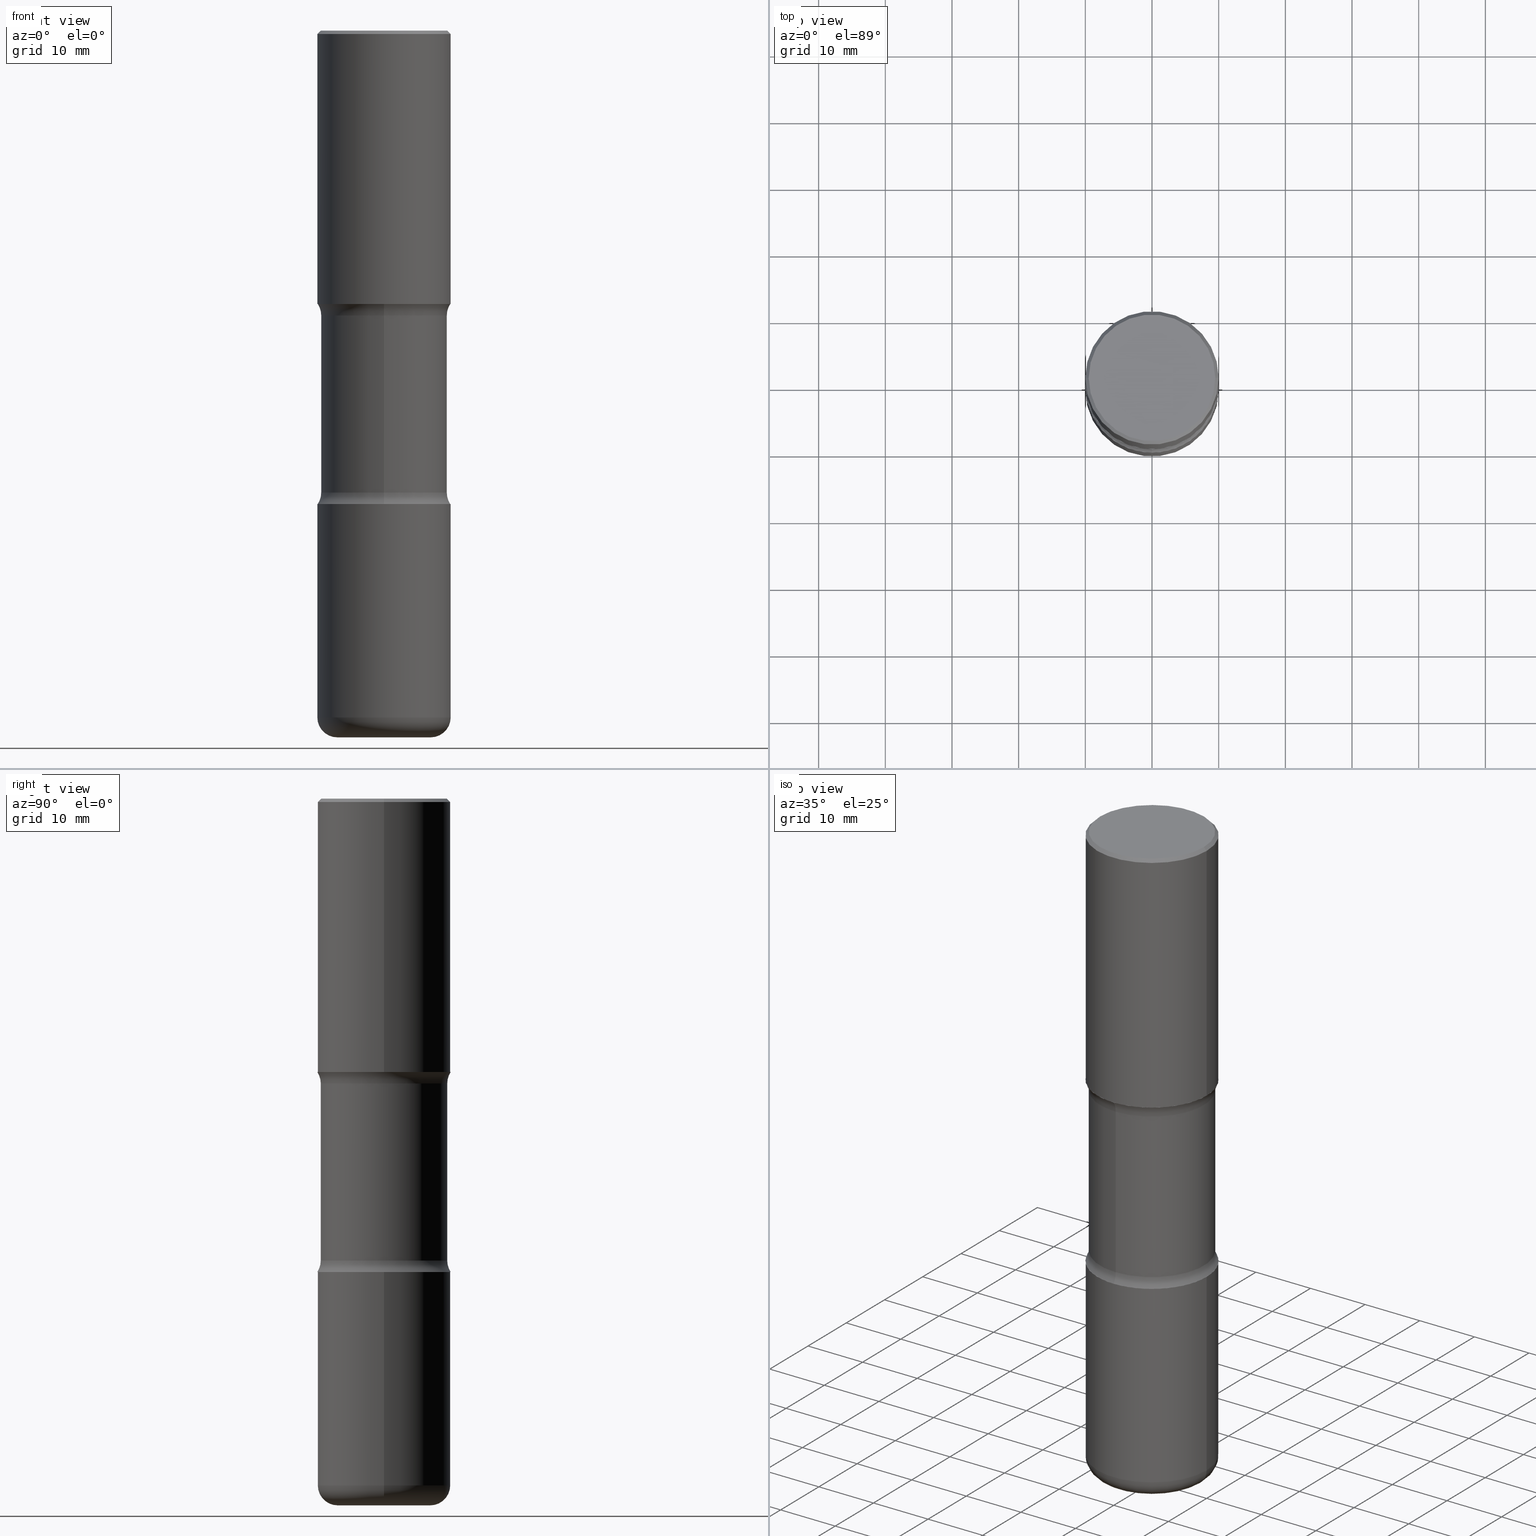
[diagram: canonical four-view strip — front | top / right | iso, engineering-drawing reading convention]
A machine part, canonical four-view strip (front | top / right | iso — engineering-drawing reading convention). The complete STEP part file that produces these views, byte-faithful:
ISO-10303-21;
HEADER;
FILE_DESCRIPTION (( 'STEP AP203' ),
    '1' );
FILE_NAME ('45010.STEP',
    '2024-03-02T04:37:54',
    ( '' ),
    ( '' ),
    'SwSTEP 2.0',
    'SolidWorks 2023',
    '' );
FILE_SCHEMA (( 'CONFIG_CONTROL_DESIGN' ));
ENDSEC;

DATA;
#1 = DIRECTION ( 'NONE',  ( -2.445468806185136877E-29, 3.491481338843145188E-15, 1.000000000000000000 ) ) ;
#2 = CARTESIAN_POINT ( 'NONE',  ( 4.018463748733707681E-29, -6.010073793817493129E-15, -1.682231930840099476 ) ) ;
#3 = ORIENTED_EDGE ( 'NONE', *, *, #560, .T. ) ;
#4 = CARTESIAN_POINT ( 'NONE',  ( 3.947231200063429727E-29, -5.635600029026721857E-15, -1.614100000000000090 ) ) ;
#5 = VECTOR ( 'NONE', #105, 39.37007874015748143 ) ;
#6 = CARTESIAN_POINT ( 'NONE',  ( 2.609533152651359776E-15, 0.3737000000000003097, -1.311169345060835261E-15 ) ) ;
#7 = CYLINDRICAL_SURFACE ( 'NONE', #381, 0.3937000000000004940 ) ;
#8 = DIRECTION ( 'NONE',  ( 6.982962677686265922E-15, 1.000000000000000000, -2.925673888797068135E-15 ) ) ;
#9 = DIRECTION ( 'NONE',  ( 1.000000000000000000, -6.982962677686266711E-15, 0.000000000000000000 ) ) ;
#10 = CIRCLE ( 'NONE', #388, 0.3937000000000006605 ) ;
#11 = CIRCLE ( 'NONE', #505, 0.3735000000000000542 ) ;
#12 = CARTESIAN_POINT ( 'NONE',  ( 1.598261485727551537E-28, -6.297392994987593400E-15, -4.173200000000000465 ) ) ;
#13 = ADVANCED_FACE ( 'NONE', ( #160 ), #301, .F. ) ;
#14 = CARTESIAN_POINT ( 'NONE',  ( 6.835574407048695164E-29, -9.759388638334361670E-15, -2.795200000000000351 ) ) ;
#15 = FACE_OUTER_BOUND ( 'NONE', #48, .T. ) ;
#16 = VECTOR ( 'NONE', #54, 39.37007874015748143 ) ;
#17 = DIRECTION ( 'NONE',  ( -2.445468806185136597E-29, 3.491481338843145583E-15, 1.000000000000000000 ) ) ;
#18 = CC_DESIGN_PERSON_AND_ORGANIZATION_ASSIGNMENT ( #372, #326, ( #352 ) ) ;
#19 = EDGE_LOOP ( 'NONE', ( #114, #42 ) ) ;
#20 = DIRECTION ( 'NONE',  ( -2.445468806185136597E-29, 3.491481338843145583E-15, 1.000000000000000000 ) ) ;
#21 = ORIENTED_EDGE ( 'NONE', *, *, #491, .T. ) ;
#22 = MECHANICAL_CONTEXT ( 'NONE', #24, 'mechanical' ) ;
#23 = CARTESIAN_POINT ( 'NONE',  ( -2.631687031945092870E-15, -0.3735000000000095466, -2.727068069159900521 ) ) ;
#24 = APPLICATION_CONTEXT ( 'configuration controlled 3d designs of mechanical parts and assemblies' ) ;
#25 = ORIENTED_EDGE ( 'NONE', *, *, #45, .F. ) ;
#26 = CIRCLE ( 'NONE', #282, 0.3735000000000000542 ) ;
#27 = EDGE_CURVE ( 'NONE', #87, #61, #248, .T. ) ;
#28 = LINE ( 'NONE', #483, #302 ) ;
#29 = LOCAL_TIME ( 23, 37, 54.00000000000000000, #369 ) ;
#30 = EDGE_LOOP ( 'NONE', ( #304, #384, #545, #512 ) ) ;
#31 = SECURITY_CLASSIFICATION_LEVEL ( 'unclassified' ) ;
#32 = ORIENTED_EDGE ( 'NONE', *, *, #191, .F. ) ;
#33 = DATE_AND_TIME ( #77, #219 ) ;
#34 = DIRECTION ( 'NONE',  ( 2.445468806185136597E-29, -3.491481338843145583E-15, -1.000000000000000000 ) ) ;
#35 = EDGE_CURVE ( 'NONE', #194, #67, #540, .T. ) ;
#36 = DIRECTION ( 'NONE',  ( 2.497382066111305685E-29, -3.417138595909611452E-15, -1.000000000000000000 ) ) ;
#37 = AXIS2_PLACEMENT_3D ( 'NONE', #173, #298, #265 ) ;
#38 = AXIS2_PLACEMENT_3D ( 'NONE', #366, #406, #221 ) ;
#39 = EDGE_CURVE ( 'NONE', #87, #410, #226, .T. ) ;
#40 = CARTESIAN_POINT ( 'NONE',  ( 0.2756000000000008998, -1.608281049111318039E-14, -4.055099999999999483 ) ) ;
#41 = ORIENTED_EDGE ( 'NONE', *, *, #308, .T. ) ;
#42 = ORIENTED_EDGE ( 'NONE', *, *, #88, .F. ) ;
#43 = CARTESIAN_POINT ( 'NONE',  ( 3.885916448764630888E-29, -5.723406242705518712E-15, -1.614100000000000090 ) ) ;
#44 = EDGE_LOOP ( 'NONE', ( #239, #426, #193, #244 ) ) ;
#45 = EDGE_CURVE ( 'NONE', #410, #260, #537, .T. ) ;
#46 = CARTESIAN_POINT ( 'NONE',  ( 6.835574407048695164E-29, -9.759388638334361670E-15, -2.795200000000000351 ) ) ;
#47 = AXIS2_PLACEMENT_3D ( 'NONE', #122, #294, #463 ) ;
#48 = EDGE_LOOP ( 'NONE', ( #162, #41 ) ) ;
#49 = AXIS2_PLACEMENT_3D ( 'NONE', #134, #307, #8 ) ;
#50 = DIRECTION ( 'NONE',  ( -1.000000000000000000, 6.982962677686265922E-15, -4.876176775795935793E-29 ) ) ;
#51 = DIRECTION ( 'NONE',  ( 1.000000000000000000, -6.982962677686265133E-15, 0.000000000000000000 ) ) ;
#52 = FACE_OUTER_BOUND ( 'NONE', #341, .T. ) ;
#53 = ADVANCED_FACE ( 'NONE', ( #232 ), #62, .T. ) ;
#54 = DIRECTION ( 'NONE',  ( -2.445468806185136877E-29, 3.491481338843145188E-15, 1.000000000000000000 ) ) ;
#55 = AXIS2_PLACEMENT_3D ( 'NONE', #465, #79, #428 ) ;
#56 =( GEOMETRIC_REPRESENTATION_CONTEXT ( 3 ) GLOBAL_UNCERTAINTY_ASSIGNED_CONTEXT ( ( #177 ) ) GLOBAL_UNIT_ASSIGNED_CONTEXT ( ( #455, #242, #421 ) ) REPRESENTATION_CONTEXT ( 'NONE', 'WORKASPACE' ) );
#57 = DIRECTION ( 'NONE',  ( -2.445468806185136597E-29, 3.491481338843145583E-15, 1.000000000000000000 ) ) ;
#58 = DIRECTION ( 'NONE',  ( 2.497382066111305685E-29, -3.417138595909611452E-15, -1.000000000000000000 ) ) ;
#59 = CARTESIAN_POINT ( 'NONE',  ( -0.2756000000000008998, -1.198664668498034458E-14, -4.173199999999999577 ) ) ;
#60 = EDGE_CURVE ( 'NONE', #550, #458, #217, .T. ) ;
#61 = VERTEX_POINT ( 'NONE', #409 ) ;
#62 = TOROIDAL_SURFACE ( 'NONE', #379, 0.2756000000000008998, 0.1180999999999999966 ) ;
#63 = DIRECTION ( 'NONE',  ( 1.000000000000000000, -6.982962677686268288E-15, 0.000000000000000000 ) ) ;
#64 = ORIENTED_EDGE ( 'NONE', *, *, #60, .T. ) ;
#65 = ORIENTED_EDGE ( 'NONE', *, *, #39, .T. ) ;
#66 = CARTESIAN_POINT ( 'NONE',  ( -0.3937000000000004940, 2.797406750687517942E-15, -1.936584745033358697E-29 ) ) ;
#67 = VERTEX_POINT ( 'NONE', #23 ) ;
#68 =( LENGTH_UNIT ( ) NAMED_UNIT ( * ) SI_UNIT ( $, .METRE. ) );
#69 = ADVANCED_FACE ( 'NONE', ( #116 ), #376, .F. ) ;
#70 = CARTESIAN_POINT ( 'NONE',  ( 6.835574407048695164E-29, -9.759388638334361670E-15, -2.795200000000000351 ) ) ;
#71 = EDGE_LOOP ( 'NONE', ( #204, #190 ) ) ;
#72 = APPLICATION_PROTOCOL_DEFINITION ( 'international standard', 'config_control_design', 1994, #549 ) ;
#73 = CIRCLE ( 'NONE', #396, 0.3937000000000008271 ) ;
#74 = APPROVAL_PERSON_ORGANIZATION ( #551, #420, #195 ) ;
#75 = ORIENTED_EDGE ( 'NONE', *, *, #314, .T. ) ;
#76 = ORIENTED_EDGE ( 'NONE', *, *, #113, .F. ) ;
#77 = CALENDAR_DATE ( 2024, 1, 3 ) ;
#78 = ORIENTED_EDGE ( 'NONE', *, *, #186, .F. ) ;
#79 = DIRECTION ( 'NONE',  ( -2.445468806185136597E-29, 3.491481338843145583E-15, 1.000000000000000000 ) ) ;
#80 = ORIENTED_EDGE ( 'NONE', *, *, #35, .T. ) ;
#81 = PERSON_AND_ORGANIZATION_ROLE ( 'design_owner' ) ;
#82 = EDGE_LOOP ( 'NONE', ( #135, #509, #75, #345 ) ) ;
#83 = DIRECTION ( 'NONE',  ( -2.445468806185136597E-29, 3.491481338843145583E-15, 1.000000000000000000 ) ) ;
#84 = AXIS2_PLACEMENT_3D ( 'NONE', #14, #98, #137 ) ;
#85 = AXIS2_PLACEMENT_3D ( 'NONE', #102, #277, #443 ) ;
#86 = DIRECTION ( 'NONE',  ( -2.445468806185136597E-29, 3.491481338843145583E-15, 1.000000000000000000 ) ) ;
#87 = VERTEX_POINT ( 'NONE', #176 ) ;
#88 = EDGE_CURVE ( 'NONE', #365, #286, #128, .T. ) ;
#89 = CARTESIAN_POINT ( 'NONE',  ( -0.3937000000000007160, -5.530807721427186863E-17, -1.614100000000000090 ) ) ;
#90 = LINE ( 'NONE', #181, #227 ) ;
#91 = CALENDAR_DATE ( 2024, 1, 3 ) ;
#92 = AXIS2_PLACEMENT_3D ( 'NONE', #452, #456, #534 ) ;
#93 = CARTESIAN_POINT ( 'NONE',  ( 0.000000000000000000, 0.000000000000000000, 0.000000000000000000 ) ) ;
#94 = DIRECTION ( 'NONE',  ( -1.000000000000000000, 6.982962677686265922E-15, -4.883557194083112340E-29 ) ) ;
#95 = EDGE_CURVE ( 'NONE', #61, #260, #197, .T. ) ;
#96 = CARTESIAN_POINT ( 'NONE',  ( 0.3937000000000004940, -2.749192406205086766E-15, 1.919750796630862414E-29 ) ) ;
#97 = ADVANCED_BREP_SHAPE_REPRESENTATION ( '45010', ( #403, #202, #222, #258 ), #56 ) ;
#98 = DIRECTION ( 'NONE',  ( 2.438088387897960049E-29, -3.491481338843145188E-15, -1.000000000000000000 ) ) ;
#99 = AXIS2_PLACEMENT_3D ( 'NONE', #40, #383, #419 ) ;
#100 = AXIS2_PLACEMENT_3D ( 'NONE', #103, #444, #178 ) ;
#101 = CARTESIAN_POINT ( 'NONE',  ( -2.562396002167564465E-15, -0.3735000000000145981, -4.173199999999998688 ) ) ;
#102 = CARTESIAN_POINT ( 'NONE',  ( 3.947231200063429727E-29, -5.635600029026721857E-15, -1.614100000000000090 ) ) ;
#103 = CARTESIAN_POINT ( 'NONE',  ( 0.000000000000000000, 0.000000000000000000, 0.000000000000000000 ) ) ;
#104 = CARTESIAN_POINT ( 'NONE',  ( 1.027696689415007474E-28, -1.446820562349780459E-14, -4.173200000000000465 ) ) ;
#105 = DIRECTION ( 'NONE',  ( -2.445468806185136877E-29, 3.491481338843145188E-15, 1.000000000000000000 ) ) ;
#106 = ORIENTED_EDGE ( 'NONE', *, *, #338, .T. ) ;
#107 = PERSON_AND_ORGANIZATION_ROLE ( 'design_supplier' ) ;
#108 = AXIS2_PLACEMENT_3D ( 'NONE', #386, #34, #218 ) ;
#109 = CARTESIAN_POINT ( 'NONE',  ( 2.608136560115862805E-15, 0.3734999999999943365, -1.682231930840100809 ) ) ;
#110 = EDGE_CURVE ( 'NONE', #207, #194, #402, .T. ) ;
#111 = ORIENTED_EDGE ( 'NONE', *, *, #510, .T. ) ;
#112 = APPROVAL_ROLE ( '' ) ;
#113 = EDGE_CURVE ( 'NONE', #458, #550, #155, .T. ) ;
#114 = ORIENTED_EDGE ( 'NONE', *, *, #268, .F. ) ;
#115 = APPROVAL_DATE_TIME ( #33, #420 ) ;
#116 = FACE_OUTER_BOUND ( 'NONE', #377, .T. ) ;
#117 = VERTEX_POINT ( 'NONE', #163 ) ;
#118 = LENGTH_MEASURE_WITH_UNIT ( LENGTH_MEASURE( 0.02539999999999999897 ), #68 );
#119 = ADVANCED_FACE ( 'NONE', ( #126 ), #209, .T. ) ;
#120 = CLOSED_SHELL ( 'NONE', ( #385, #13, #151, #471, #238, #440, #435, #482 ) ) ;
#121 = CC_DESIGN_SECURITY_CLASSIFICATION ( #293, ( #370 ) ) ;
#122 = CARTESIAN_POINT ( 'NONE',  ( 4.890937612370306439E-31, -6.982962677686338448E-17, -0.02000000000000013572 ) ) ;
#123 = ORIENTED_EDGE ( 'NONE', *, *, #39, .F. ) ;
#124 = DATE_AND_TIME ( #335, #360 ) ;
#125 = EDGE_CURVE ( 'NONE', #260, #61, #504, .T. ) ;
#126 = FACE_OUTER_BOUND ( 'NONE', #30, .T. ) ;
#127 = DIRECTION ( 'NONE',  ( -2.445468806185136597E-29, 3.491481338843145583E-15, 1.000000000000000000 ) ) ;
#128 = CIRCLE ( 'NONE', #446, 0.3937000000000008271 ) ;
#129 = DIRECTION ( 'NONE',  ( 6.982962677686265922E-15, 1.000000000000000000, -3.657092360996333689E-15 ) ) ;
#130 = CIRCLE ( 'NONE', #38, 0.1181000000000000383 ) ;
#131 = PRODUCT ( '45010', '45010', '', ( #22 ) ) ;
#132 = EDGE_CURVE ( 'NONE', #506, #117, #267, .T. ) ;
#133 = DIRECTION ( 'NONE',  ( -2.445468806185136597E-29, 3.491481338843145583E-15, 1.000000000000000000 ) ) ;
#134 = CARTESIAN_POINT ( 'NONE',  ( 1.027696689415007474E-28, -1.446820562349780459E-14, -4.173200000000000465 ) ) ;
#135 = ORIENTED_EDGE ( 'NONE', *, *, #143, .F. ) ;
#136 = EDGE_CURVE ( 'NONE', #67, #328, #26, .T. ) ;
#137 = DIRECTION ( 'NONE',  ( -1.000000000000000000, 6.982962677686265922E-15, -4.876176775795935793E-29 ) ) ;
#138 = CIRCLE ( 'NONE', #85, 0.3937000000000006605 ) ;
#139 = APPROVAL ( #546, 'UNSPECIFIED' ) ;
#140 = DIRECTION ( 'NONE',  ( -2.445468806185136597E-29, 3.491481338843145583E-15, 1.000000000000000000 ) ) ;
#141 = CARTESIAN_POINT ( 'NONE',  ( 2.608136560115886865E-15, 0.3734999999999905618, -2.727068069159902741 ) ) ;
#142 = CARTESIAN_POINT ( 'NONE',  ( 2.749192406205127393E-15, 0.3936999999999950539, -1.614100000000001423 ) ) ;
#143 = EDGE_CURVE ( 'NONE', #174, #331, #299, .T. ) ;
#144 = TOROIDAL_SURFACE ( 'NONE', #92, 0.4985000000000001097, 0.1249999999999999445 ) ;
#145 = CC_DESIGN_APPROVAL ( #514, ( #293 ) ) ;
#146 = CYLINDRICAL_SURFACE ( 'NONE', #447, 0.3735000000000001097 ) ;
#147 = CARTESIAN_POINT ( 'NONE',  ( -0.3737000000000003097, 2.644447966039791425E-15, -1.280553747031960567E-17 ) ) ;
#148 = FACE_OUTER_BOUND ( 'NONE', #494, .T. ) ;
#149 = DIRECTION ( 'NONE',  ( -2.438088387897960049E-29, 3.491481338843145188E-15, 1.000000000000000000 ) ) ;
#150 = ORIENTED_EDGE ( 'NONE', *, *, #125, .T. ) ;
#151 = ADVANCED_FACE ( 'NONE', ( #424 ), #257, .F. ) ;
#152 = CARTESIAN_POINT ( 'NONE',  ( 4.056067910974230799E-29, -5.956222493193065901E-15, -1.682231930840099476 ) ) ;
#153 = EDGE_LOOP ( 'NONE', ( #289, #516, #329, #291 ) ) ;
#154 = APPROVAL_STATUS ( 'not_yet_approved' ) ;
#155 = CIRCLE ( 'NONE', #274, 0.3735000000000002762 ) ;
#156 = AXIS2_PLACEMENT_3D ( 'NONE', #223, #478, #273 ) ;
#157 = LOCAL_TIME ( 23, 37, 54.00000000000000000, #501 ) ;
#158 = CARTESIAN_POINT ( 'NONE',  ( -0.3937000000000003830, 2.679362779428222679E-15, -0.02000000000000013572 ) ) ;
#159 = ORIENTED_EDGE ( 'NONE', *, *, #361, .F. ) ;
#160 = FACE_OUTER_BOUND ( 'NONE', #325, .T. ) ;
#161 = DIMENSIONAL_EXPONENTS ( 1.000000000000000000, 0.000000000000000000, 0.000000000000000000, 0.000000000000000000, 0.000000000000000000, 0.000000000000000000, 0.000000000000000000 ) ;
#162 = ORIENTED_EDGE ( 'NONE', *, *, #186, .T. ) ;
#163 = CARTESIAN_POINT ( 'NONE',  ( 0.2756000000000008998, -1.649515443723055294E-14, -4.173199999999999577 ) ) ;
#164 = ORIENTED_EDGE ( 'NONE', *, *, #27, .F. ) ;
#165 = APPROVAL_ROLE ( '' ) ;
#166 = EDGE_CURVE ( 'NONE', #117, #87, #474, .T. ) ;
#167 = EDGE_LOOP ( 'NONE', ( #414, #3, #123, #371 ) ) ;
#168 = AXIS2_PLACEMENT_3D ( 'NONE', #170, #83, #214 ) ;
#169 = CIRCLE ( 'NONE', #492, 0.1250000000000000278 ) ;
#170 = CARTESIAN_POINT ( 'NONE',  ( 1.020543042197181255E-28, -1.457064992326021168E-14, -4.173199999999999577 ) ) ;
#171 = ORIENTED_EDGE ( 'NONE', *, *, #45, .T. ) ;
#172 = DIRECTION ( 'NONE',  ( 2.497382066111305685E-29, -3.417138595909611452E-15, -1.000000000000000000 ) ) ;
#173 = CARTESIAN_POINT ( 'NONE',  ( 3.131554243005659264E-46, -4.471029511141341874E-32, -1.280553747030123384E-17 ) ) ;
#174 = VERTEX_POINT ( 'NONE', #89 ) ;
#175 = AXIS2_PLACEMENT_3D ( 'NONE', #12, #276, #392 ) ;
#176 = CARTESIAN_POINT ( 'NONE',  ( 0.3937000000000009381, -1.690749838334792865E-14, -4.055099999999999483 ) ) ;
#177 = UNCERTAINTY_MEASURE_WITH_UNIT (LENGTH_MEASURE( 1.000000000000000082E-05 ), #455, 'distance_accuracy_value', 'NONE');
#178 = DIRECTION ( 'NONE',  ( 1.000000000000000000, -6.982962677686266711E-15, 4.876176775795935793E-29 ) ) ;
#179 = CARTESIAN_POINT ( 'NONE',  ( -2.700978061722618909E-15, -0.3937000000000064892, -1.614099999999998758 ) ) ;
#180 = CARTESIAN_POINT ( 'NONE',  ( 6.665422944839096374E-29, -9.526572387846816848E-15, -2.727068069159901409 ) ) ;
#181 = CARTESIAN_POINT ( 'NONE',  ( 2.608136560115923941E-15, 0.3734999999999856213, -4.173200000000001353 ) ) ;
#182 = CIRCLE ( 'NONE', #156, 0.1250000000000000278 ) ;
#183 = ORGANIZATION ( 'UNSPECIFIED', 'UNSPECIFIED', '' ) ;
#184 = DIRECTION ( 'NONE',  ( 1.000000000000000000, -6.982962677686266711E-15, 4.876176775795935793E-29 ) ) ;
#185 = PLANE ( 'NONE',  #175 ) ;
#186 = EDGE_CURVE ( 'NONE', #544, #254, #530, .T. ) ;
#187 = CARTESIAN_POINT ( 'NONE',  ( -3.419958251889070202E-15, -0.4985000000000063825, -1.682231930840097922 ) ) ;
#188 = AXIS2_PLACEMENT_3D ( 'NONE', #367, #497, #374 ) ;
#189 = FACE_OUTER_BOUND ( 'NONE', #417, .T. ) ;
#190 = ORIENTED_EDGE ( 'NONE', *, *, #132, .F. ) ;
#191 = EDGE_CURVE ( 'NONE', #251, #174, #10, .T. ) ;
#192 = PLANE ( 'NONE',  #404 ) ;
#193 = ORIENTED_EDGE ( 'NONE', *, *, #312, .F. ) ;
#194 = VERTEX_POINT ( 'NONE', #513 ) ;
#195 = APPROVAL_ROLE ( '' ) ;
#196 = ORIENTED_EDGE ( 'NONE', *, *, #354, .T. ) ;
#197 = CIRCLE ( 'NONE', #480, 0.3937000000000002164 ) ;
#198 = CC_DESIGN_APPROVAL ( #139, ( #370 ) ) ;
#199 = DIRECTION ( 'NONE',  ( 1.000000000000000000, -6.982962677686266711E-15, 4.883557194083112340E-29 ) ) ;
#200 = ORIENTED_EDGE ( 'NONE', *, *, #400, .T. ) ;
#201 = PERSON_AND_ORGANIZATION ( #279, #183 ) ;
#202 = MANIFOLD_SOLID_BREP ( 'Body-Move/Copy2[2]', #466 ) ;
#203 = EDGE_LOOP ( 'NONE', ( #220, #64, #454, #234 ) ) ;
#204 = ORIENTED_EDGE ( 'NONE', *, *, #306, .F. ) ;
#205 = APPLICATION_PROTOCOL_DEFINITION ( 'international standard', 'config_control_design', 1994, #24 ) ;
#206 = FACE_OUTER_BOUND ( 'NONE', #19, .T. ) ;
#207 = VERTEX_POINT ( 'NONE', #262 ) ;
#208 = CARTESIAN_POINT ( 'NONE',  ( 0.000000000000000000, 0.000000000000000000, 0.000000000000000000 ) ) ;
#209 = TOROIDAL_SURFACE ( 'NONE', #55, 0.2756000000000008998, 0.1180999999999999966 ) ;
#210 = CIRCLE ( 'NONE', #531, 0.3937000000000002164 ) ;
#211 = DIRECTION ( 'NONE',  ( 6.982962677686265922E-15, 1.000000000000000000, -3.417138595909611452E-15 ) ) ;
#212 = DIRECTION ( 'NONE',  ( 6.982962677686265922E-15, 1.000000000000000000, -3.469453890861388868E-15 ) ) ;
#213 = CC_DESIGN_PERSON_AND_ORGANIZATION_ASSIGNMENT ( #461, #81, ( #131 ) ) ;
#214 = DIRECTION ( 'NONE',  ( 1.000000000000000000, -6.982962677686265133E-15, 0.000000000000000000 ) ) ;
#215 = EDGE_LOOP ( 'NONE', ( #263, #196, #159, #519 ) ) ;
#216 = CARTESIAN_POINT ( 'NONE',  ( -2.631687031945122847E-15, -0.3735000000000062159, -1.682231930840098144 ) ) ;
#217 = CIRCLE ( 'NONE', #490, 0.3735000000000002762 ) ;
#218 = DIRECTION ( 'NONE',  ( -1.000000000000000000, 6.982962677686266711E-15, 0.000000000000000000 ) ) ;
#219 = LOCAL_TIME ( 23, 37, 54.00000000000000000, #250 ) ;
#220 = ORIENTED_EDGE ( 'NONE', *, *, #354, .F. ) ;
#221 = DIRECTION ( 'NONE',  ( -1.000000000000000000, 7.105427357601001859E-15, 0.000000000000000000 ) ) ;
#222 = MANIFOLD_SOLID_BREP ( 'Body-Move/Copy2[4]', #120 ) ;
#223 = CARTESIAN_POINT ( 'NONE',  ( 3.481006894826646538E-15, 0.4984999999999943365, -1.682231930840101253 ) ) ;
#224 = DIRECTION ( 'NONE',  ( 1.000000000000000000, -6.982962677686266711E-15, 0.000000000000000000 ) ) ;
#225 = CARTESIAN_POINT ( 'NONE',  ( 4.890937612370306439E-31, -6.982962677686338448E-17, -0.02000000000000013572 ) ) ;
#226 = CIRCLE ( 'NONE', #359, 0.3937000000000008271 ) ;
#227 = VECTOR ( 'NONE', #355, 39.37007874015748143 ) ;
#228 = ADVANCED_FACE ( 'NONE', ( #333 ), #412, .T. ) ;
#229 = LINE ( 'NONE', #101, #270 ) ;
#230 = CC_DESIGN_PERSON_AND_ORGANIZATION_ASSIGNMENT ( #296, #107, ( #370 ) ) ;
#231 = CARTESIAN_POINT ( 'NONE',  ( 6.835574407048695164E-29, -9.759388638334361670E-15, -2.795200000000000351 ) ) ;
#232 = FACE_OUTER_BOUND ( 'NONE', #167, .T. ) ;
#233 = VECTOR ( 'NONE', #416, 39.37007874015748143 ) ;
#234 = ORIENTED_EDGE ( 'NONE', *, *, #136, .F. ) ;
#235 = AXIS2_PLACEMENT_3D ( 'NONE', #439, #315, #224 ) ;
#236 = DIRECTION ( 'NONE',  ( 2.497382066111305685E-29, -3.417138595909611452E-15, -1.000000000000000000 ) ) ;
#237 = DIRECTION ( 'NONE',  ( 6.860497997771528407E-15, 1.000000000000000000, 0.000000000000000000 ) ) ;
#238 = ADVANCED_FACE ( 'NONE', ( #206 ), #382, .F. ) ;
#239 = ORIENTED_EDGE ( 'NONE', *, *, #191, .T. ) ;
#240 = DIRECTION ( 'NONE',  ( 1.000000000000000000, 0.000000000000000000, 0.000000000000000000 ) ) ;
#241 = ORIENTED_EDGE ( 'NONE', *, *, #308, .F. ) ;
#242 =( NAMED_UNIT ( * ) PLANE_ANGLE_UNIT ( ) SI_UNIT ( $, .RADIAN. ) );
#243 = DIRECTION ( 'NONE',  ( 2.497382066111305685E-29, -3.417138595909611452E-15, -1.000000000000000000 ) ) ;
#244 = ORIENTED_EDGE ( 'NONE', *, *, #314, .F. ) ;
#245 = PERSON_AND_ORGANIZATION_ROLE ( 'creator' ) ;
#246 = CLOSED_SHELL ( 'NONE', ( #522, #53, #297, #119, #393, #261 ) ) ;
#247 = CIRCLE ( 'NONE', #557, 0.3737000000000003097 ) ;
#248 = LINE ( 'NONE', #486, #5 ) ;
#249 = ORIENTED_EDGE ( 'NONE', *, *, #427, .T. ) ;
#250 = COORDINATED_UNIVERSAL_TIME_OFFSET ( 5, 0, .BEHIND. ) ;
#251 = VERTEX_POINT ( 'NONE', #518 ) ;
#252 = CARTESIAN_POINT ( 'NONE',  ( -0.3937000000000004940, 2.797406750687517942E-15, -1.936584745033358697E-29 ) ) ;
#253 = APPROVAL_STATUS ( 'not_yet_approved' ) ;
#254 = VERTEX_POINT ( 'NONE', #552 ) ;
#255 = DIRECTION ( 'NONE',  ( 1.000000000000000000, -6.982962677686266711E-15, 0.000000000000000000 ) ) ;
#256 = ADVANCED_FACE ( 'NONE', ( #503 ), #324, .T. ) ;
#257 = TOROIDAL_SURFACE ( 'NONE', #316, 0.4985000000000003872, 0.1250000000000000278 ) ;
#258 = AXIS2_PLACEMENT_3D ( 'NONE', #208, #418, #240 ) ;
#259 = CARTESIAN_POINT ( 'NONE',  ( 6.665422944839096374E-29, -9.526572387846816848E-15, -2.727068069159901409 ) ) ;
#260 = VERTEX_POINT ( 'NONE', #269 ) ;
#261 = ADVANCED_FACE ( 'NONE', ( #441 ), #479, .F. ) ;
#262 = CARTESIAN_POINT ( 'NONE',  ( 2.749192406205152636E-15, 0.3936999999999903910, -2.795200000000001239 ) ) ;
#263 = ORIENTED_EDGE ( 'NONE', *, *, #113, .T. ) ;
#264 = DIRECTION ( 'NONE',  ( 1.000000000000000000, -6.982962677686266711E-15, 4.876176775795935793E-29 ) ) ;
#265 = DIRECTION ( 'NONE',  ( 1.000000000000000000, -6.982962677686266711E-15, 4.876212485538971195E-29 ) ) ;
#266 = EDGE_LOOP ( 'NONE', ( #241, #21, #334, #431 ) ) ;
#267 = CIRCLE ( 'NONE', #168, 0.2756000000000008998 ) ;
#268 = EDGE_CURVE ( 'NONE', #286, #365, #73, .T. ) ;
#269 = CARTESIAN_POINT ( 'NONE',  ( -0.3937000000000002164, -9.161440557051081666E-15, -2.795200000000000351 ) ) ;
#270 = VECTOR ( 'NONE', #436, 39.37007874015748143 ) ;
#271 = FACE_OUTER_BOUND ( 'NONE', #82, .T. ) ;
#272 = DIRECTION ( 'NONE',  ( 1.000000000000000000, -6.982962677686266711E-15, 4.876176775795935793E-29 ) ) ;
#273 = DIRECTION ( 'NONE',  ( -6.982962677686265133E-15, -1.000000000000000000, 0.000000000000000000 ) ) ;
#274 = AXIS2_PLACEMENT_3D ( 'NONE', #464, #378, #129 ) ;
#275 = AXIS2_PLACEMENT_3D ( 'NONE', #320, #236, #532 ) ;
#276 = DIRECTION ( 'NONE',  ( 2.438088387897960049E-29, -3.491481338843145188E-15, -1.000000000000000000 ) ) ;
#277 = DIRECTION ( 'NONE',  ( -2.445468806185136597E-29, 3.491481338843145583E-15, 1.000000000000000000 ) ) ;
#278 = DIRECTION ( 'NONE',  ( -0.7071067811865464625, 2.468850131082245228E-15, -0.7071067811865486830 ) ) ;
#279 = PERSON ( 'UNSPECIFIED', 'UNSPECIFIED', 'UNSPECIFIED', ('UNSPECIFIED'), ('UNSPECIFIED'), ('UNSPECIFIED') ) ;
#280 = PRODUCT_RELATED_PRODUCT_CATEGORY ( 'detail', '', ( #131 ) ) ;
#281 = PRODUCT_DEFINITION_SHAPE ( 'NONE', 'NONE',  #352 ) ;
#282 = AXIS2_PLACEMENT_3D ( 'NONE', #259, #36, #470 ) ;
#283 = ORIENTED_EDGE ( 'NONE', *, *, #27, .T. ) ;
#284 = DATE_TIME_ROLE ( 'classification_date' ) ;
#285 = CIRCLE ( 'NONE', #317, 0.1249999999999999584 ) ;
#286 = VERTEX_POINT ( 'NONE', #142 ) ;
#287 = FACE_OUTER_BOUND ( 'NONE', #203, .T. ) ;
#288 = DIRECTION ( 'NONE',  ( 1.000000000000000000, -6.860497997771530774E-15, 4.841709315645876741E-29 ) ) ;
#289 = ORIENTED_EDGE ( 'NONE', *, *, #60, .F. ) ;
#290 = EDGE_CURVE ( 'NONE', #458, #286, #182, .T. ) ;
#291 = ORIENTED_EDGE ( 'NONE', *, *, #290, .F. ) ;
#292 = CIRCLE ( 'NONE', #475, 0.2756000000000008998 ) ;
#293 = SECURITY_CLASSIFICATION ( '', '', #31 ) ;
#294 = DIRECTION ( 'NONE',  ( 2.445468806185136597E-29, -3.491481338843145583E-15, -1.000000000000000000 ) ) ;
#295 = ORIENTED_EDGE ( 'NONE', *, *, #361, .T. ) ;
#296 = PERSON_AND_ORGANIZATION ( #279, #183 ) ;
#297 = ADVANCED_FACE ( 'NONE', ( #313 ), #185, .T. ) ;
#298 = DIRECTION ( 'NONE',  ( -2.445468806185136597E-29, 3.491481338843145583E-15, 1.000000000000000000 ) ) ;
#299 = LINE ( 'NONE', #252, #346 ) ;
#300 = EDGE_LOOP ( 'NONE', ( #487, #111 ) ) ;
#301 = TOROIDAL_SURFACE ( 'NONE', #188, 0.4985000000000001097, 0.1249999999999999445 ) ;
#302 = VECTOR ( 'NONE', #373, 39.37007874015748143 ) ;
#303 = CARTESIAN_POINT ( 'NONE',  ( 6.835574407048695164E-29, -9.759388638334361670E-15, -2.795200000000000351 ) ) ;
#304 = ORIENTED_EDGE ( 'NONE', *, *, #560, .F. ) ;
#305 = DIRECTION ( 'NONE',  ( -2.445468806185136597E-29, 3.491481338843145583E-15, 1.000000000000000000 ) ) ;
#306 = EDGE_CURVE ( 'NONE', #117, #506, #292, .T. ) ;
#307 = DIRECTION ( 'NONE',  ( 2.497382066111305685E-29, -3.417138595909611452E-15, -1.000000000000000000 ) ) ;
#308 = EDGE_CURVE ( 'NONE', #254, #544, #247, .T. ) ;
#309 = CARTESIAN_POINT ( 'NONE',  ( 1.020543042197181255E-28, -1.457064992326021168E-14, -4.173199999999999577 ) ) ;
#310 = AXIS2_PLACEMENT_3D ( 'NONE', #225, #140, #9 ) ;
#311 = DIRECTION ( 'NONE',  ( 2.497382066111305685E-29, -3.417138595909611452E-15, -1.000000000000000000 ) ) ;
#312 = EDGE_CURVE ( 'NONE', #558, #331, #413, .T. ) ;
#313 = FACE_OUTER_BOUND ( 'NONE', #71, .T. ) ;
#314 = EDGE_CURVE ( 'NONE', #251, #558, #521, .T. ) ;
#315 = DIRECTION ( 'NONE',  ( -2.445468806185136597E-29, 3.491481338843145583E-15, 1.000000000000000000 ) ) ;
#316 = AXIS2_PLACEMENT_3D ( 'NONE', #2, #468, #211 ) ;
#317 = AXIS2_PLACEMENT_3D ( 'NONE', #477, #94, #472 ) ;
#318 = DIRECTION ( 'NONE',  ( -6.982962677686265922E-15, -1.000000000000000000, 3.417138595909611452E-15 ) ) ;
#319 = FACE_OUTER_BOUND ( 'NONE', #44, .T. ) ;
#320 = CARTESIAN_POINT ( 'NONE',  ( 4.018463748733707681E-29, -6.010073793817493129E-15, -1.682231930840099476 ) ) ;
#321 = ORIENTED_EDGE ( 'NONE', *, *, #95, .F. ) ;
#322 = DATE_AND_TIME ( #559, #29 ) ;
#323 = DIRECTION ( 'NONE',  ( 2.497382066111305685E-29, -3.417138595909611452E-15, -1.000000000000000000 ) ) ;
#324 = CONICAL_SURFACE ( 'NONE', #47, 0.3937000000000003830, 0.7853981633974467247 ) ;
#325 = EDGE_LOOP ( 'NONE', ( #462, #80, #405, #536 ) ) ;
#326 = PERSON_AND_ORGANIZATION_ROLE ( 'creator' ) ;
#327 = CIRCLE ( 'NONE', #459, 0.3937000000000008271 ) ;
#328 = VERTEX_POINT ( 'NONE', #141 ) ;
#329 = ORIENTED_EDGE ( 'NONE', *, *, #88, .T. ) ;
#330 = DIRECTION ( 'NONE',  ( 6.982962677686265922E-15, 1.000000000000000000, -3.657092360996333689E-15 ) ) ;
#331 = VERTEX_POINT ( 'NONE', #481 ) ;
#332 = PERSON_AND_ORGANIZATION_ROLE ( 'classification_officer' ) ;
#333 = FACE_OUTER_BOUND ( 'NONE', #266, .T. ) ;
#334 = ORIENTED_EDGE ( 'NONE', *, *, #312, .T. ) ;
#335 = CALENDAR_DATE ( 2024, 1, 3 ) ;
#336 = AXIS2_PLACEMENT_3D ( 'NONE', #526, #527, #272 ) ;
#337 = EDGE_LOOP ( 'NONE', ( #343, #76, #450, #498 ) ) ;
#338 = EDGE_CURVE ( 'NONE', #207, #328, #285, .T. ) ;
#339 = DIRECTION ( 'NONE',  ( 1.000000000000000000, -6.982962677686269866E-15, 0.000000000000000000 ) ) ;
#340 = DIRECTION ( 'NONE',  ( 1.000000000000000000, -6.982962677686269866E-15, 0.000000000000000000 ) ) ;
#341 = EDGE_LOOP ( 'NONE', ( #25, #407, #283, #368 ) ) ;
#342 = DATE_AND_TIME ( #91, #347 ) ;
#343 = ORIENTED_EDGE ( 'NONE', *, *, #449, .F. ) ;
#344 = CARTESIAN_POINT ( 'NONE',  ( 3.947231200063429727E-29, -5.635600029026721857E-15, -1.614100000000000090 ) ) ;
#345 = ORIENTED_EDGE ( 'NONE', *, *, #400, .F. ) ;
#346 = VECTOR ( 'NONE', #1, 39.37007874015748143 ) ;
#347 = LOCAL_TIME ( 23, 37, 54.00000000000000000, #473 ) ;
#348 = DIRECTION ( 'NONE',  ( 6.982962677686265922E-15, 1.000000000000000000, -3.417138595909611452E-15 ) ) ;
#349 = ADVANCED_FACE ( 'NONE', ( #271 ), #7, .T. ) ;
#350 = FACE_OUTER_BOUND ( 'NONE', #215, .T. ) ;
#351 = ORIENTED_EDGE ( 'NONE', *, *, #35, .F. ) ;
#352 = PRODUCT_DEFINITION ( 'UNKNOWN', '', #370, #433 ) ;
#353 = CARTESIAN_POINT ( 'NONE',  ( 0.000000000000000000, 0.000000000000000000, 0.000000000000000000 ) ) ;
#354 = EDGE_CURVE ( 'NONE', #550, #67, #229, .T. ) ;
#355 = DIRECTION ( 'NONE',  ( 2.497382066111305685E-29, -3.417138595909611452E-15, -1.000000000000000000 ) ) ;
#356 = CYLINDRICAL_SURFACE ( 'NONE', #49, 0.3735000000000001097 ) ;
#357 = CARTESIAN_POINT ( 'NONE',  ( 3.131554243005659264E-46, -4.471029511141341874E-32, -1.280553747030123384E-17 ) ) ;
#358 = FACE_OUTER_BOUND ( 'NONE', #337, .T. ) ;
#359 = AXIS2_PLACEMENT_3D ( 'NONE', #364, #453, #457 ) ;
#360 = LOCAL_TIME ( 23, 37, 54.00000000000000000, #539 ) ;
#361 = EDGE_CURVE ( 'NONE', #328, #67, #11, .T. ) ;
#362 = PLANE ( 'NONE',  #389 ) ;
#363 = DIRECTION ( 'NONE',  ( 2.497382066111305685E-29, -3.417138595909611452E-15, -1.000000000000000000 ) ) ;
#364 = CARTESIAN_POINT ( 'NONE',  ( 9.916620555961346429E-29, -1.415830597714283912E-14, -4.055099999999999483 ) ) ;
#365 = VERTEX_POINT ( 'NONE', #179 ) ;
#366 = CARTESIAN_POINT ( 'NONE',  ( -0.2756000000000008998, -1.220005019738799465E-14, -4.055099999999999483 ) ) ;
#367 = CARTESIAN_POINT ( 'NONE',  ( 6.621268914021895076E-29, -9.589803473068410880E-15, -2.727068069159901409 ) ) ;
#368 = ORIENTED_EDGE ( 'NONE', *, *, #125, .F. ) ;
#369 = COORDINATED_UNIVERSAL_TIME_OFFSET ( 5, 0, .BEHIND. ) ;
#370 = PRODUCT_DEFINITION_FORMATION_WITH_SPECIFIED_SOURCE ( 'ANY', '', #131, .NOT_KNOWN. ) ;
#371 = ORIENTED_EDGE ( 'NONE', *, *, #166, .F. ) ;
#372 = PERSON_AND_ORGANIZATION ( #279, #183 ) ;
#373 = DIRECTION ( 'NONE',  ( 0.7071067811865464625, -7.319954787623252890E-15, -0.7071067811865486830 ) ) ;
#374 = DIRECTION ( 'NONE',  ( 6.982962677686265922E-15, 1.000000000000000000, -3.417138595909611452E-15 ) ) ;
#375 = EDGE_LOOP ( 'NONE', ( #553, #150 ) ) ;
#376 = PLANE ( 'NONE',  #556 ) ;
#377 = EDGE_LOOP ( 'NONE', ( #32, #387 ) ) ;
#378 = DIRECTION ( 'NONE',  ( 2.497382066111305685E-29, -3.417138595909611452E-15, -1.000000000000000000 ) ) ;
#379 = AXIS2_PLACEMENT_3D ( 'NONE', #493, #17, #199 ) ;
#380 = CC_DESIGN_DATE_AND_TIME_ASSIGNMENT ( #124, #284, ( #293 ) ) ;
#381 = AXIS2_PLACEMENT_3D ( 'NONE', #353, #57, #184 ) ;
#382 = PLANE ( 'NONE',  #423 ) ;
#383 = DIRECTION ( 'NONE',  ( -6.982962677686266711E-15, -1.000000000000000000, 3.491481338843145583E-15 ) ) ;
#384 = ORIENTED_EDGE ( 'NONE', *, *, #132, .T. ) ;
#385 = ADVANCED_FACE ( 'NONE', ( #350 ), #356, .T. ) ;
#386 = CARTESIAN_POINT ( 'NONE',  ( 4.890937612370306439E-31, -6.982962677686338448E-17, -0.02000000000000013572 ) ) ;
#387 = ORIENTED_EDGE ( 'NONE', *, *, #502, .F. ) ;
#388 = AXIS2_PLACEMENT_3D ( 'NONE', #344, #127, #255 ) ;
#389 = AXIS2_PLACEMENT_3D ( 'NONE', #6, #533, #50 ) ;
#390 = CARTESIAN_POINT ( 'NONE',  ( 0.3937000000000003830, -2.770807688499518100E-15, -0.02000000000000013572 ) ) ;
#391 = DIRECTION ( 'NONE',  ( 6.982962677686265922E-15, 1.000000000000000000, -2.925673888797068529E-15 ) ) ;
#392 = DIRECTION ( 'NONE',  ( -1.000000000000000000, 6.982962677686265922E-15, -4.876176775795935793E-29 ) ) ;
#393 = ADVANCED_FACE ( 'NONE', ( #52 ), #394, .T. ) ;
#394 = CYLINDRICAL_SURFACE ( 'NONE', #336, 0.3937000000000004940 ) ;
#395 = CC_DESIGN_PERSON_AND_ORGANIZATION_ASSIGNMENT ( #507, #245, ( #370 ) ) ;
#396 = AXIS2_PLACEMENT_3D ( 'NONE', #523, #311, #397 ) ;
#397 = DIRECTION ( 'NONE',  ( 6.982962677686265922E-15, 1.000000000000000000, -3.469453890861388868E-15 ) ) ;
#398 = CC_DESIGN_APPROVAL ( #420, ( #352 ) ) ;
#399 = DIRECTION ( 'NONE',  ( -2.445468806185136597E-29, 3.491481338843145583E-15, 1.000000000000000000 ) ) ;
#400 = EDGE_CURVE ( 'NONE', #331, #558, #467, .T. ) ;
#401 = DIRECTION ( 'NONE',  ( 6.982962677686265922E-15, 1.000000000000000000, -2.925673888797068135E-15 ) ) ;
#402 = CIRCLE ( 'NONE', #515, 0.3937000000000002164 ) ;
#403 = MANIFOLD_SOLID_BREP ( 'Body-Move/Copy2[1]', #246 ) ;
#404 = AXIS2_PLACEMENT_3D ( 'NONE', #70, #547, #318 ) ;
#405 = ORIENTED_EDGE ( 'NONE', *, *, #136, .T. ) ;
#406 = DIRECTION ( 'NONE',  ( 7.105427357601001859E-15, 1.000000000000000000, -3.491481338843145583E-15 ) ) ;
#407 = ORIENTED_EDGE ( 'NONE', *, *, #485, .T. ) ;
#408 = EDGE_CURVE ( 'NONE', #458, #328, #90, .T. ) ;
#409 = CARTESIAN_POINT ( 'NONE',  ( 0.3937000000000002164, -1.250858104453944804E-14, -2.795200000000000351 ) ) ;
#410 = VERTEX_POINT ( 'NONE', #437 ) ;
#411 = CARTESIAN_POINT ( 'NONE',  ( 9.916620555961346429E-29, -1.415830597714283912E-14, -4.055099999999999483 ) ) ;
#412 = CONICAL_SURFACE ( 'NONE', #108, 0.3937000000000003830, 0.7853981633974467247 ) ;
#413 = CIRCLE ( 'NONE', #235, 0.3937000000000003830 ) ;
#414 = ORIENTED_EDGE ( 'NONE', *, *, #306, .T. ) ;
#415 = CALENDAR_DATE ( 2024, 1, 3 ) ;
#416 = DIRECTION ( 'NONE',  ( -2.445468806185136877E-29, 3.491481338843145188E-15, 1.000000000000000000 ) ) ;
#417 = EDGE_LOOP ( 'NONE', ( #65, #171, #321, #164 ) ) ;
#418 = DIRECTION ( 'NONE',  ( 0.000000000000000000, 0.000000000000000000, 1.000000000000000000 ) ) ;
#419 = DIRECTION ( 'NONE',  ( 1.000000000000000000, -6.982962677686270655E-15, 0.000000000000000000 ) ) ;
#420 = APPROVAL ( #253, 'UNSPECIFIED' ) ;
#421 =( NAMED_UNIT ( * ) SI_UNIT ( $, .STERADIAN. ) SOLID_ANGLE_UNIT ( ) );
#422 = CARTESIAN_POINT ( 'NONE',  ( 6.835574407048695164E-29, -9.759388638334361670E-15, -2.795200000000000351 ) ) ;
#423 = AXIS2_PLACEMENT_3D ( 'NONE', #4, #430, #348 ) ;
#424 = FACE_OUTER_BOUND ( 'NONE', #153, .T. ) ;
#425 = SHAPE_DEFINITION_REPRESENTATION ( #281, #97 ) ;
#426 = ORIENTED_EDGE ( 'NONE', *, *, #143, .T. ) ;
#427 = EDGE_CURVE ( 'NONE', #544, #331, #541, .T. ) ;
#428 = DIRECTION ( 'NONE',  ( 1.000000000000000000, -6.982962677686266711E-15, 4.883557194083112340E-29 ) ) ;
#429 = APPROVAL_DATE_TIME ( #342, #514 ) ;
#430 = DIRECTION ( 'NONE',  ( 2.497382066111305685E-29, -3.417138595909611452E-15, -1.000000000000000000 ) ) ;
#431 = ORIENTED_EDGE ( 'NONE', *, *, #427, .F. ) ;
#432 = AXIS2_PLACEMENT_3D ( 'NONE', #448, #288, #237 ) ;
#433 = DESIGN_CONTEXT ( 'detailed design', #549, 'design' ) ;
#434 = DIRECTION ( 'NONE',  ( -2.445468806185136597E-29, 3.491481338843145583E-15, 1.000000000000000000 ) ) ;
#435 = ADVANCED_FACE ( 'NONE', ( #148 ), #144, .F. ) ;
#436 = DIRECTION ( 'NONE',  ( 2.497382066111305685E-29, -3.417138595909611452E-15, -1.000000000000000000 ) ) ;
#437 = CARTESIAN_POINT ( 'NONE',  ( -0.3937000000000009381, -1.136089922645531724E-14, -4.055099999999999483 ) ) ;
#438 = APPROVAL_PERSON_ORGANIZATION ( #554, #139, #165 ) ;
#439 = CARTESIAN_POINT ( 'NONE',  ( 4.890937612370306439E-31, -6.982962677686338448E-17, -0.02000000000000013572 ) ) ;
#440 = ADVANCED_FACE ( 'NONE', ( #489 ), #192, .F. ) ;
#441 = FACE_OUTER_BOUND ( 'NONE', #375, .T. ) ;
#442 = CYLINDRICAL_SURFACE ( 'NONE', #525, 0.3937000000000004940 ) ;
#443 = DIRECTION ( 'NONE',  ( 1.000000000000000000, -6.982962677686266711E-15, 0.000000000000000000 ) ) ;
#444 = DIRECTION ( 'NONE',  ( -2.445468806185136597E-29, 3.491481338843145583E-15, 1.000000000000000000 ) ) ;
#445 = DIRECTION ( 'NONE',  ( 6.860497997771532351E-15, 1.000000000000000000, 0.000000000000000000 ) ) ;
#446 = AXIS2_PLACEMENT_3D ( 'NONE', #43, #555, #212 ) ;
#447 = AXIS2_PLACEMENT_3D ( 'NONE', #104, #243, #401 ) ;
#448 = CARTESIAN_POINT ( 'NONE',  ( -3.419958251889042592E-15, -0.4985000000000096576, -2.727068069159899633 ) ) ;
#449 = EDGE_CURVE ( 'NONE', #550, #365, #169, .T. ) ;
#450 = ORIENTED_EDGE ( 'NONE', *, *, #290, .T. ) ;
#451 = PERSON_AND_ORGANIZATION ( #279, #183 ) ;
#452 = CARTESIAN_POINT ( 'NONE',  ( 6.621268914021895076E-29, -9.589803473068410880E-15, -2.727068069159901409 ) ) ;
#453 = DIRECTION ( 'NONE',  ( -2.445468806185136597E-29, 3.491481338843145583E-15, 1.000000000000000000 ) ) ;
#454 = ORIENTED_EDGE ( 'NONE', *, *, #408, .T. ) ;
#455 =( CONVERSION_BASED_UNIT ( 'INCH', #118 ) LENGTH_UNIT ( ) NAMED_UNIT ( #161 ) );
#456 = DIRECTION ( 'NONE',  ( 2.497382066111305685E-29, -3.417138595909611452E-15, -1.000000000000000000 ) ) ;
#457 = DIRECTION ( 'NONE',  ( 1.000000000000000000, -6.982962677686268288E-15, 0.000000000000000000 ) ) ;
#458 = VERTEX_POINT ( 'NONE', #109 ) ;
#459 = AXIS2_PLACEMENT_3D ( 'NONE', #411, #20, #63 ) ;
#460 = ORIENTED_EDGE ( 'NONE', *, *, #491, .F. ) ;
#461 = PERSON_AND_ORGANIZATION ( #279, #183 ) ;
#462 = ORIENTED_EDGE ( 'NONE', *, *, #510, .F. ) ;
#463 = DIRECTION ( 'NONE',  ( -1.000000000000000000, 6.982962677686266711E-15, 0.000000000000000000 ) ) ;
#464 = CARTESIAN_POINT ( 'NONE',  ( 4.056067910974230799E-29, -5.956222493193065901E-15, -1.682231930840099476 ) ) ;
#465 = CARTESIAN_POINT ( 'NONE',  ( 9.916620555961346429E-29, -1.415830597714283912E-14, -4.055099999999999483 ) ) ;
#466 = CLOSED_SHELL ( 'NONE', ( #548, #228, #256, #528, #69, #349 ) ) ;
#467 = CIRCLE ( 'NONE', #310, 0.3937000000000003830 ) ;
#468 = DIRECTION ( 'NONE',  ( 2.497382066111305685E-29, -3.417138595909611452E-15, -1.000000000000000000 ) ) ;
#469 = CC_DESIGN_PERSON_AND_ORGANIZATION_ASSIGNMENT ( #201, #332, ( #293 ) ) ;
#470 = DIRECTION ( 'NONE',  ( 6.982962677686265922E-15, 1.000000000000000000, -2.925673888797068529E-15 ) ) ;
#471 = ADVANCED_FACE ( 'NONE', ( #358 ), #542, .F. ) ;
#472 = DIRECTION ( 'NONE',  ( -6.982962677686265133E-15, -1.000000000000000000, 0.000000000000000000 ) ) ;
#473 = COORDINATED_UNIVERSAL_TIME_OFFSET ( 5, 0, .BEHIND. ) ;
#474 = CIRCLE ( 'NONE', #99, 0.1181000000000000383 ) ;
#475 = AXIS2_PLACEMENT_3D ( 'NONE', #309, #434, #51 ) ;
#476 = CC_DESIGN_DATE_AND_TIME_ASSIGNMENT ( #322, #495, ( #352 ) ) ;
#477 = CARTESIAN_POINT ( 'NONE',  ( 3.481006894826670204E-15, 0.4984999999999905063, -2.727068069159903185 ) ) ;
#478 = DIRECTION ( 'NONE',  ( -1.000000000000000000, 6.982962677686265922E-15, -4.883557194083112340E-29 ) ) ;
#479 = PLANE ( 'NONE',  #84 ) ;
#480 = AXIS2_PLACEMENT_3D ( 'NONE', #46, #86, #340 ) ;
#481 = CARTESIAN_POINT ( 'NONE',  ( -0.3937000000000003830, 2.679362779428222679E-15, -0.02000000000000013572 ) ) ;
#482 = ADVANCED_FACE ( 'NONE', ( #287 ), #146, .T. ) ;
#483 = CARTESIAN_POINT ( 'NONE',  ( 0.3937000000000003830, -2.770807688499518100E-15, -0.02000000000000013572 ) ) ;
#484 = CYLINDRICAL_SURFACE ( 'NONE', #100, 0.3937000000000004940 ) ;
#485 = EDGE_CURVE ( 'NONE', #410, #87, #327, .T. ) ;
#486 = CARTESIAN_POINT ( 'NONE',  ( 0.3937000000000004940, -2.749192406205086766E-15, 1.919750796630862414E-29 ) ) ;
#487 = ORIENTED_EDGE ( 'NONE', *, *, #110, .T. ) ;
#488 = DATE_AND_TIME ( #415, #157 ) ;
#489 = FACE_OUTER_BOUND ( 'NONE', #300, .T. ) ;
#490 = AXIS2_PLACEMENT_3D ( 'NONE', #152, #323, #330 ) ;
#491 = EDGE_CURVE ( 'NONE', #254, #558, #28, .T. ) ;
#492 = AXIS2_PLACEMENT_3D ( 'NONE', #187, #496, #445 ) ;
#493 = CARTESIAN_POINT ( 'NONE',  ( 9.916620555961346429E-29, -1.415830597714283912E-14, -4.055099999999999483 ) ) ;
#494 = EDGE_LOOP ( 'NONE', ( #351, #500, #106, #295 ) ) ;
#495 = DATE_TIME_ROLE ( 'creation_date' ) ;
#496 = DIRECTION ( 'NONE',  ( 1.000000000000000000, -6.860497997771530774E-15, 4.841709315645876741E-29 ) ) ;
#497 = DIRECTION ( 'NONE',  ( 2.497382066111305685E-29, -3.417138595909611452E-15, -1.000000000000000000 ) ) ;
#498 = ORIENTED_EDGE ( 'NONE', *, *, #268, .T. ) ;
#499 = APPROVAL_DATE_TIME ( #488, #139 ) ;
#500 = ORIENTED_EDGE ( 'NONE', *, *, #110, .F. ) ;
#501 = COORDINATED_UNIVERSAL_TIME_OFFSET ( 5, 0, .BEHIND. ) ;
#502 = EDGE_CURVE ( 'NONE', #174, #251, #138, .T. ) ;
#503 = FACE_OUTER_BOUND ( 'NONE', #538, .T. ) ;
#504 = CIRCLE ( 'NONE', #524, 0.3937000000000002164 ) ;
#505 = AXIS2_PLACEMENT_3D ( 'NONE', #180, #58, #391 ) ;
#506 = VERTEX_POINT ( 'NONE', #59 ) ;
#507 = PERSON_AND_ORGANIZATION ( #279, #183 ) ;
#508 = DIRECTION ( 'NONE',  ( 1.000000000000000000, -6.982962677686265922E-15, 4.876176775795935793E-29 ) ) ;
#509 = ORIENTED_EDGE ( 'NONE', *, *, #502, .T. ) ;
#510 = EDGE_CURVE ( 'NONE', #194, #207, #210, .T. ) ;
#511 = DIRECTION ( 'NONE',  ( 6.982962677686265922E-15, 1.000000000000000000, -2.775563112689115117E-15 ) ) ;
#512 = ORIENTED_EDGE ( 'NONE', *, *, #485, .F. ) ;
#513 = CARTESIAN_POINT ( 'NONE',  ( -2.700978061722585382E-15, -0.3937000000000099864, -2.795199999999999019 ) ) ;
#514 = APPROVAL ( #154, 'UNSPECIFIED' ) ;
#515 = AXIS2_PLACEMENT_3D ( 'NONE', #303, #172, #511 ) ;
#516 = ORIENTED_EDGE ( 'NONE', *, *, #449, .T. ) ;
#517 = APPROVAL_PERSON_ORGANIZATION ( #451, #514, #112 ) ;
#518 = CARTESIAN_POINT ( 'NONE',  ( 0.3937000000000006605, -8.384792435231810596E-15, -1.614100000000000090 ) ) ;
#519 = ORIENTED_EDGE ( 'NONE', *, *, #408, .F. ) ;
#520 = DIRECTION ( 'NONE',  ( 6.982962677686265922E-15, 1.000000000000000000, -2.775563112689115117E-15 ) ) ;
#521 = LINE ( 'NONE', #96, #16 ) ;
#522 = ADVANCED_FACE ( 'NONE', ( #189 ), #442, .T. ) ;
#523 = CARTESIAN_POINT ( 'NONE',  ( 3.885916448764630888E-29, -5.723406242705518712E-15, -1.614100000000000090 ) ) ;
#524 = AXIS2_PLACEMENT_3D ( 'NONE', #422, #305, #339 ) ;
#525 = AXIS2_PLACEMENT_3D ( 'NONE', #93, #133, #264 ) ;
#526 = CARTESIAN_POINT ( 'NONE',  ( 0.000000000000000000, 0.000000000000000000, 0.000000000000000000 ) ) ;
#527 = DIRECTION ( 'NONE',  ( -2.445468806185136597E-29, 3.491481338843145583E-15, 1.000000000000000000 ) ) ;
#528 = ADVANCED_FACE ( 'NONE', ( #15 ), #362, .F. ) ;
#529 = DIRECTION ( 'NONE',  ( 1.000000000000000000, -6.982962677686266711E-15, 4.876212485538971195E-29 ) ) ;
#530 = CIRCLE ( 'NONE', #37, 0.3737000000000003097 ) ;
#531 = AXIS2_PLACEMENT_3D ( 'NONE', #231, #363, #520 ) ;
#532 = DIRECTION ( 'NONE',  ( 6.982962677686265922E-15, 1.000000000000000000, -3.417138595909611452E-15 ) ) ;
#533 = DIRECTION ( 'NONE',  ( 2.438088387897960049E-29, -3.491481338843145188E-15, -1.000000000000000000 ) ) ;
#534 = DIRECTION ( 'NONE',  ( 6.982962677686265922E-15, 1.000000000000000000, -3.417138595909611452E-15 ) ) ;
#535 = CARTESIAN_POINT ( 'NONE',  ( 3.947231200063429727E-29, -5.635600029026721857E-15, -1.614100000000000090 ) ) ;
#536 = ORIENTED_EDGE ( 'NONE', *, *, #338, .F. ) ;
#537 = LINE ( 'NONE', #66, #233 ) ;
#538 = EDGE_LOOP ( 'NONE', ( #460, #78, #249, #200 ) ) ;
#539 = COORDINATED_UNIVERSAL_TIME_OFFSET ( 5, 0, .BEHIND. ) ;
#540 = CIRCLE ( 'NONE', #432, 0.1249999999999999584 ) ;
#541 = LINE ( 'NONE', #158, #543 ) ;
#542 = TOROIDAL_SURFACE ( 'NONE', #275, 0.4985000000000003872, 0.1250000000000000278 ) ;
#543 = VECTOR ( 'NONE', #278, 39.37007874015748143 ) ;
#544 = VERTEX_POINT ( 'NONE', #147 ) ;
#545 = ORIENTED_EDGE ( 'NONE', *, *, #166, .T. ) ;
#546 = APPROVAL_STATUS ( 'not_yet_approved' ) ;
#547 = DIRECTION ( 'NONE',  ( -2.497382066111305685E-29, 3.417138595909611452E-15, 1.000000000000000000 ) ) ;
#548 = ADVANCED_FACE ( 'NONE', ( #319 ), #484, .T. ) ;
#549 = APPLICATION_CONTEXT ( 'configuration controlled 3d designs of mechanical parts and assemblies' ) ;
#550 = VERTEX_POINT ( 'NONE', #216 ) ;
#551 = PERSON_AND_ORGANIZATION ( #279, #183 ) ;
#552 = CARTESIAN_POINT ( 'NONE',  ( 0.3737000000000003097, -2.667287895133370725E-15, -1.280553747028278189E-17 ) ) ;
#553 = ORIENTED_EDGE ( 'NONE', *, *, #95, .T. ) ;
#554 = PERSON_AND_ORGANIZATION ( #279, #183 ) ;
#555 = DIRECTION ( 'NONE',  ( 2.497382066111305685E-29, -3.417138595909611452E-15, -1.000000000000000000 ) ) ;
#556 = AXIS2_PLACEMENT_3D ( 'NONE', #535, #149, #508 ) ;
#557 = AXIS2_PLACEMENT_3D ( 'NONE', #357, #399, #529 ) ;
#558 = VERTEX_POINT ( 'NONE', #390 ) ;
#559 = CALENDAR_DATE ( 2024, 1, 3 ) ;
#560 = EDGE_CURVE ( 'NONE', #506, #410, #130, .T. ) ;
ENDSEC;
END-ISO-10303-21;
